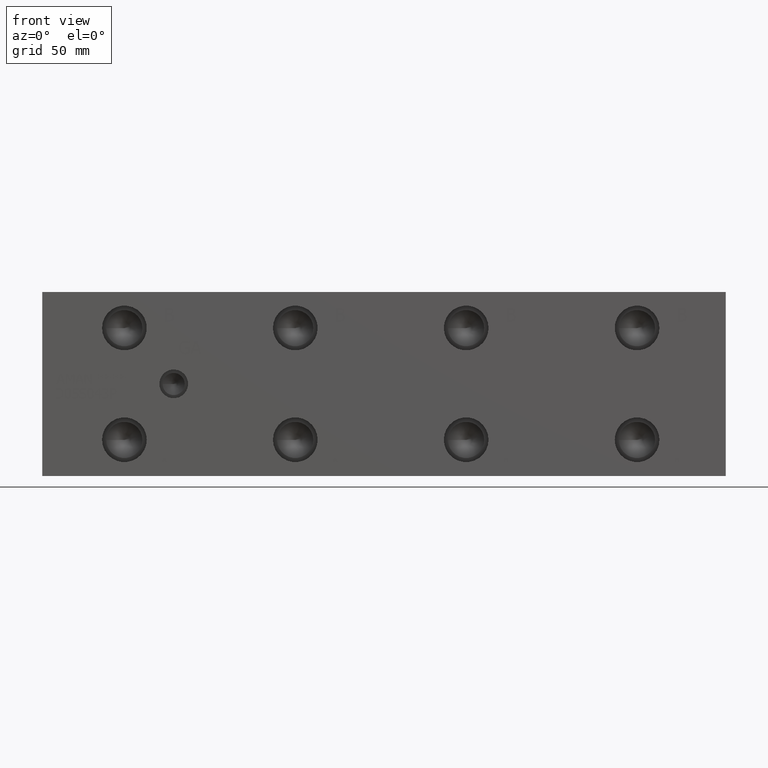
[diagram: clean part render]
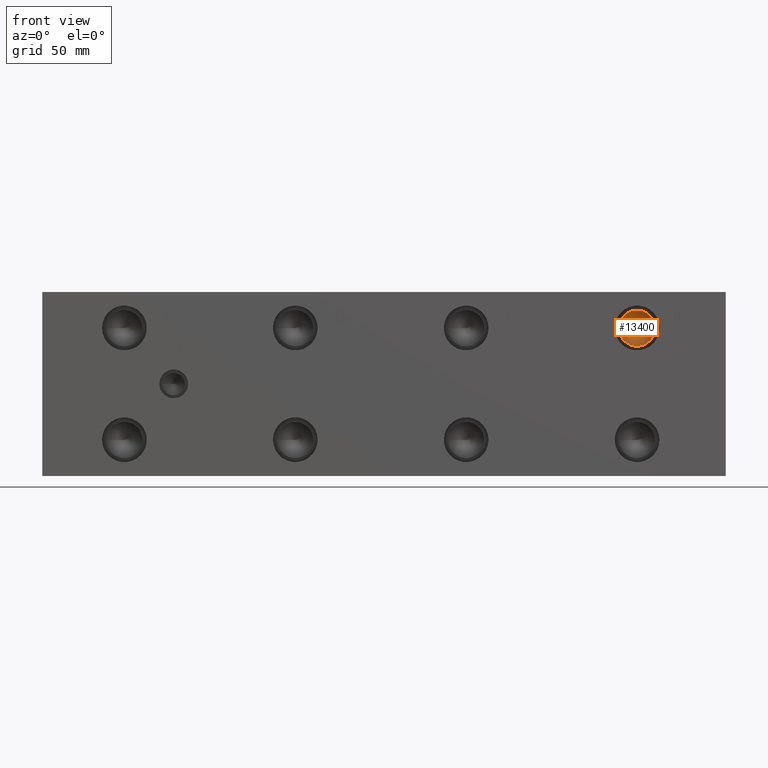
[diagram: same view with one face highlighted and labeled with its STEP entity id]
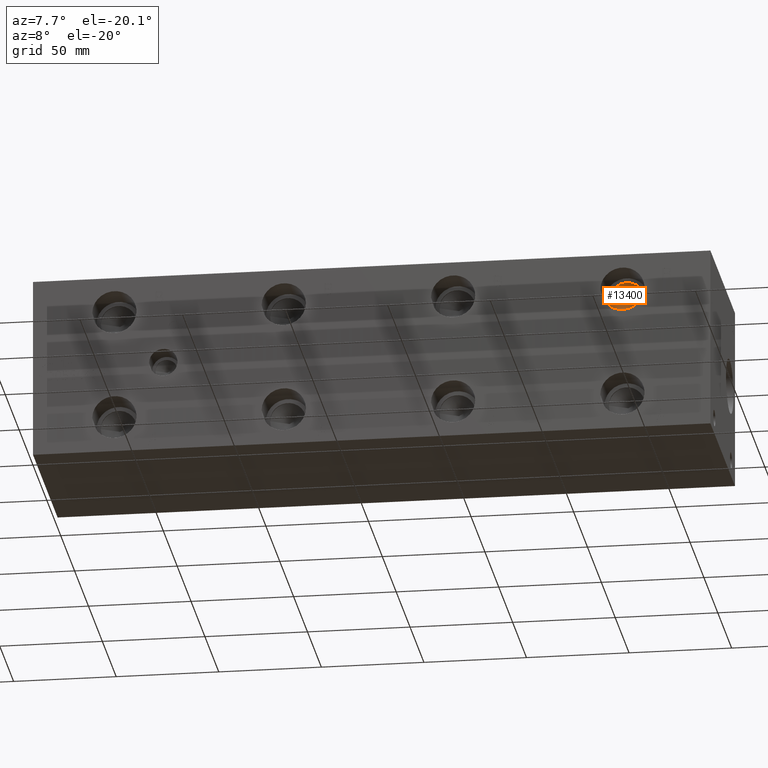
[diagram: same view with one face highlighted and labeled with its STEP entity id]
A machine part, front view. The second image highlights one B-rep face of the part: STEP entity #13400.
A second angle (auxiliary view) of the same face is appended — the face is thin or edge-on in the first view.
In plain terms, the highlighted conical surface has half-angle 60 deg.
Its self-contained STEP definition (entity closure, byte-faithful):
#103=CONICAL_SURFACE('',#14019,4.3688,1.0471975511966);
#224=CIRCLE('',#14020,8.7376);
#225=CIRCLE('',#14021,8.7376);
#1648=FACE_OUTER_BOUND('',#2416,.T.);
#2416=EDGE_LOOP('',(#11294,#11295,#11296,#11297));
#3722=LINE('',#22637,#4951);
#4951=VECTOR('',#16445,4.3688);
#6110=VERTEX_POINT('',#22633);
#6111=VERTEX_POINT('',#22634);
#6112=VERTEX_POINT('',#22636);
#7909=EDGE_CURVE('',#6110,#6111,#224,.T.);
#7910=EDGE_CURVE('',#6111,#6112,#3722,.T.);
#7911=EDGE_CURVE('',#6111,#6110,#225,.T.);
#11294=ORIENTED_EDGE('',*,*,#7909,.T.);
#11295=ORIENTED_EDGE('',*,*,#7910,.T.);
#11296=ORIENTED_EDGE('',*,*,#7910,.F.);
#11297=ORIENTED_EDGE('',*,*,#7911,.T.);
#13400=ADVANCED_FACE('',(#1648),#103,.F.);
#14019=AXIS2_PLACEMENT_3D('',#22632,#16441,#16442);
#14020=AXIS2_PLACEMENT_3D('',#22635,#16443,#16444);
#14021=AXIS2_PLACEMENT_3D('',#22638,#16446,#16447);
#16441=DIRECTION('center_axis',(0.,-1.,0.));
#16442=DIRECTION('ref_axis',(1.,0.,0.));
#16443=DIRECTION('center_axis',(0.,-1.,0.));
#16444=DIRECTION('ref_axis',(1.,0.,0.));
#16445=DIRECTION('',(0.866025403784439,0.5,1.06057523872491E-16));
#16446=DIRECTION('center_axis',(0.,-1.,0.));
#16447=DIRECTION('ref_axis',(1.,0.,0.));
#22632=CARTESIAN_POINT('Origin',(287.3248,18.3937978560356,71.4502));
#22633=CARTESIAN_POINT('',(296.0624,15.87147,71.4502));
#22634=CARTESIAN_POINT('',(278.5872,15.87147,71.4502));
#22635=CARTESIAN_POINT('Origin',(287.3248,15.87147,71.4502));
#22636=CARTESIAN_POINT('',(287.3248,20.9161257120713,71.4502));
#22637=CARTESIAN_POINT('',(282.956,18.3937978560356,71.4502));
#22638=CARTESIAN_POINT('Origin',(287.3248,15.87147,71.4502));